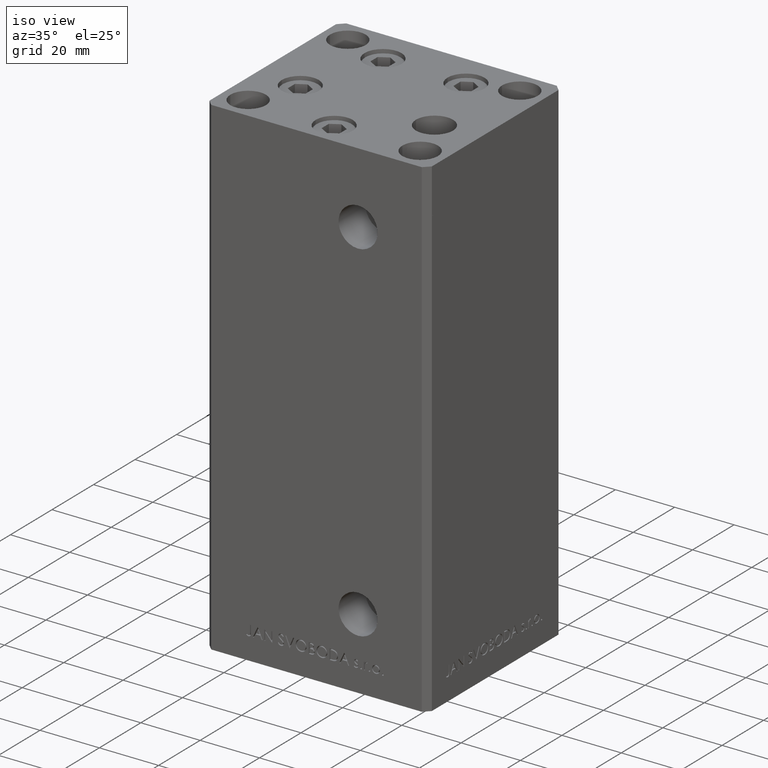
[diagram: clean part render]
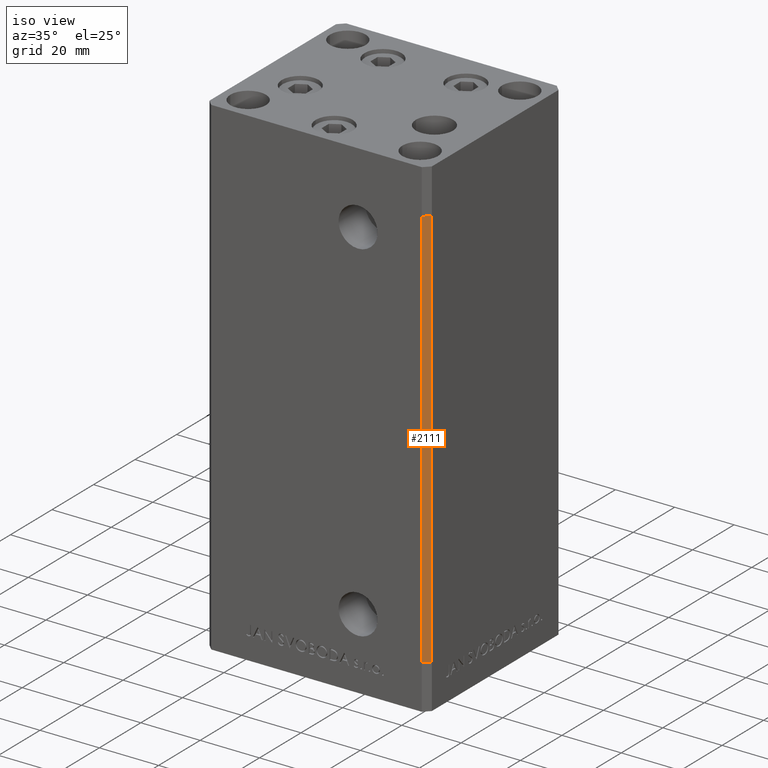
[diagram: same view with one face highlighted and labeled with its STEP entity id]
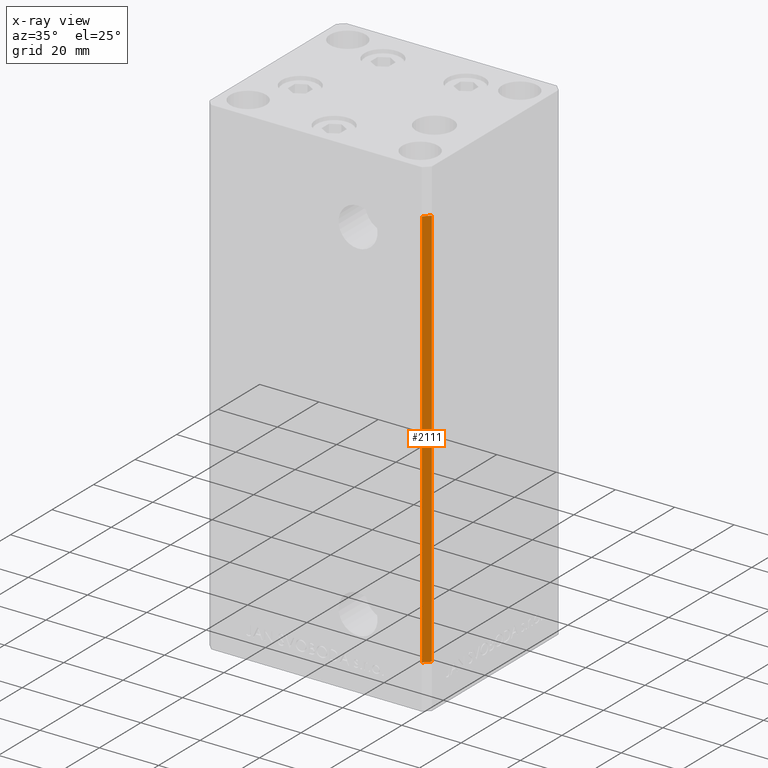
[diagram: x-ray of the same camera — body ghosted, the highlighted face saturated]
A machine part, iso view. The second image highlights one B-rep face of the part: STEP entity #2111.
The next image is the same camera in x-ray: the body ghosted, the highlighted face saturated — about 0% of this face is hidden behind the body in this view.
In plain terms, the highlighted planar face has unit normal (0.7071, -0.7071, 0).
Its self-contained STEP definition (entity closure, byte-faithful):
#182 = CARTESIAN_POINT ( 'NONE',  ( 35.49999999999999289, -32.50000000000000000, 136.0000000000000000 ) ) ;
#1461 = VERTEX_POINT ( 'NONE', #38644 ) ;
#1468 = DIRECTION ( 'NONE',  ( 0.7071067811865475727, -0.7071067811865475727, 0.000000000000000000 ) ) ;
#1961 = PLANE ( 'NONE',  #23362 ) ;
#2111 = ADVANCED_FACE ( 'NONE', ( #28373 ), #1961, .T. ) ;
#5360 = VERTEX_POINT ( 'NONE', #20260 ) ;
#7332 = CARTESIAN_POINT ( 'NONE',  ( 35.49999999999999289, -32.50000000000000000, 136.0000000000000000 ) ) ;
#8874 = LINE ( 'NONE', #24212, #39315 ) ;
#9386 = EDGE_CURVE ( 'NONE', #5360, #47813, #44662, .T. ) ;
#9765 = DIRECTION ( 'NONE',  ( 0.7071067811865474617, 0.7071067811865474617, 0.000000000000000000 ) ) ;
#9781 = VECTOR ( 'NONE', #36128, 1000.000000000000114 ) ;
#10178 = EDGE_LOOP ( 'NONE', ( #27200, #43996, #38469, #13881 ) ) ;
#11805 = EDGE_CURVE ( 'NONE', #42451, #47813, #22680, .T. ) ;
#13659 = DIRECTION ( 'NONE',  ( -0.7071067811865474617, -0.7071067811865474617, 0.000000000000000000 ) ) ;
#13881 = ORIENTED_EDGE ( 'NONE', *, *, #11805, .T. ) ;
#15137 = DIRECTION ( 'NONE',  ( -0.000000000000000000, -0.000000000000000000, -1.000000000000000000 ) ) ;
#20260 = CARTESIAN_POINT ( 'NONE',  ( 37.49999999999999289, -30.50000000000000000, 0.000000000000000000 ) ) ;
#20316 = VECTOR ( 'NONE', #15137, 1000.000000000000000 ) ;
#21091 = CARTESIAN_POINT ( 'NONE',  ( 37.49999999999999289, -30.50000000000000000, 136.0000000000000000 ) ) ;
#22680 = LINE ( 'NONE', #7332, #20316 ) ;
#23362 = AXIS2_PLACEMENT_3D ( 'NONE', #21091, #1468, #9765 ) ;
#24212 = CARTESIAN_POINT ( 'NONE',  ( 37.49999999999999289, -30.50000000000000000, 136.0000000000000000 ) ) ;
#25085 = CARTESIAN_POINT ( 'NONE',  ( 37.49999999999999289, -30.50000000000000000, 0.000000000000000000 ) ) ;
#27200 = ORIENTED_EDGE ( 'NONE', *, *, #9386, .F. ) ;
#28373 = FACE_OUTER_BOUND ( 'NONE', #10178, .T. ) ;
#29124 = EDGE_CURVE ( 'NONE', #1461, #42451, #40274, .T. ) ;
#31267 = DIRECTION ( 'NONE',  ( -0.000000000000000000, -0.000000000000000000, -1.000000000000000000 ) ) ;
#32758 = CARTESIAN_POINT ( 'NONE',  ( 37.49999999999999289, -30.50000000000000000, 136.0000000000000000 ) ) ;
#36128 = DIRECTION ( 'NONE',  ( -0.7071067811865474617, -0.7071067811865474617, 0.000000000000000000 ) ) ;
#38469 = ORIENTED_EDGE ( 'NONE', *, *, #29124, .T. ) ;
#38602 = CARTESIAN_POINT ( 'NONE',  ( 35.49999999999999289, -32.50000000000000000, 0.000000000000000000 ) ) ;
#38644 = CARTESIAN_POINT ( 'NONE',  ( 37.49999999999999289, -30.50000000000000000, 136.0000000000000000 ) ) ;
#39315 = VECTOR ( 'NONE', #31267, 1000.000000000000000 ) ;
#40274 = LINE ( 'NONE', #32758, #44553 ) ;
#42451 = VERTEX_POINT ( 'NONE', #182 ) ;
#43996 = ORIENTED_EDGE ( 'NONE', *, *, #44296, .F. ) ;
#44296 = EDGE_CURVE ( 'NONE', #1461, #5360, #8874, .T. ) ;
#44553 = VECTOR ( 'NONE', #13659, 1000.000000000000114 ) ;
#44662 = LINE ( 'NONE', #25085, #9781 ) ;
#47813 = VERTEX_POINT ( 'NONE', #38602 ) ;